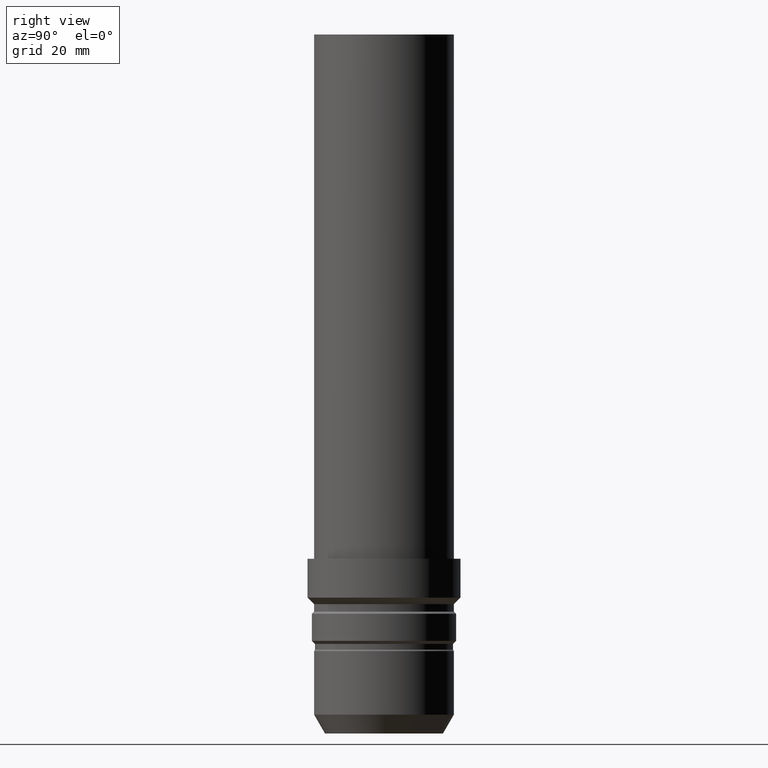
[diagram: clean part render]
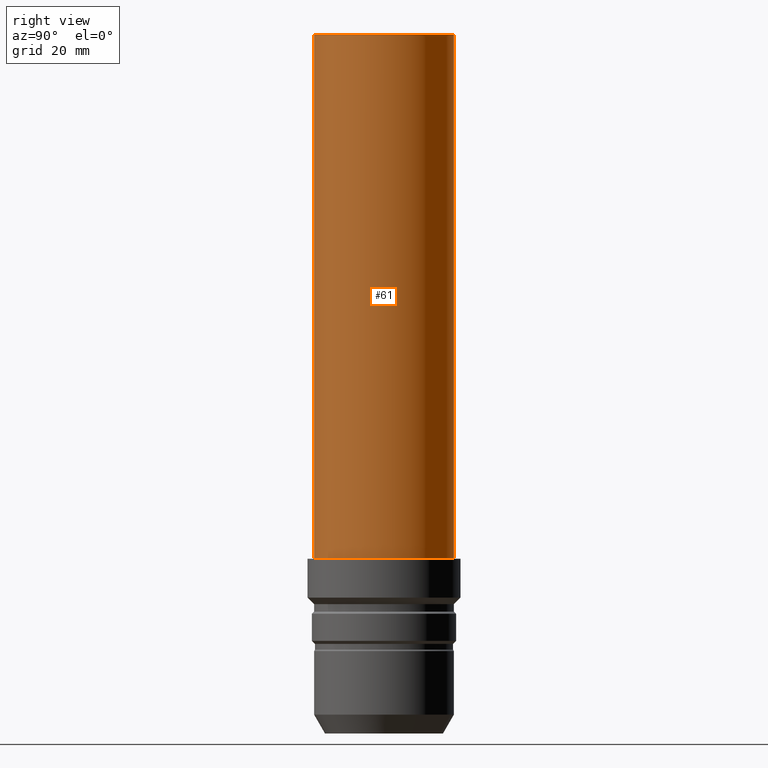
[diagram: same view with one face highlighted and labeled with its STEP entity id]
A machine part, right view. The second image highlights one B-rep face of the part: STEP entity #61.
In plain terms, the highlighted cylindrical surface (bore or boss wall) has radius 16 mm, axis along (0, -0, -1).
Its self-contained STEP definition (entity closure, byte-faithful):
#61=ADVANCED_FACE('Unnamed[1]',(#153,#154),#155,.T.);
#66=EDGE_CURVE('Unnamed[1]',#162,#162,#163,.T.);
#109=EDGE_CURVE('Unnamed[1]',#228,#228,#229,.T.);
#153=FACE_BOUND('',#273,.T.);
#154=FACE_BOUND('',#274,.T.);
#155=CYLINDRICAL_SURFACE('',#275,16.0000000000001);
#162=VERTEX_POINT('',#284);
#163=CIRCLE('',#285,16.0);
#228=VERTEX_POINT('',#366);
#229=CIRCLE('',#367,16.0000000000002);
#273=EDGE_LOOP('',(#408));
#274=EDGE_LOOP('',(#409));
#275=AXIS2_PLACEMENT_3D('',#410,#411,#412);
#284=CARTESIAN_POINT('',(-9.7971743931788E-015,16.0000000000002,160.0));
#285=AXIS2_PLACEMENT_3D('',#419,#420,#421);
#366=CARTESIAN_POINT('',(-2.4492935982947E-015,16.0000000000002,39.9999999999998));
#367=AXIS2_PLACEMENT_3D('',#491,#492,#493);
#408=ORIENTED_EDGE('',*,*,#109,.F.);
#409=ORIENTED_EDGE('',*,*,#66,.T.);
#410=CARTESIAN_POINT('',(-6.12323399573675E-015,1.36889334477662E-013,99.9999999999997));
#411=DIRECTION('',(6.12323399573676E-017,-1.3688933447766E-015,-1.0));
#412=DIRECTION('',(7.89933899219683E-032,1.0,-1.3688933447766E-015));
#419=CARTESIAN_POINT('',(-9.7971743931788E-015,2.1902293516426E-013,160.0));
#420=DIRECTION('',(6.12323399573677E-017,-1.36889334477661E-015,-1.0));
#421=DIRECTION('',(7.89933899219688E-032,1.0,-1.36889334477661E-015));
#491=CARTESIAN_POINT('',(-2.4492935982947E-015,5.47557337910649E-014,39.9999999999999));
#492=DIRECTION('',(6.12323399573676E-017,-1.36889334477659E-015,-1.0));
#493=DIRECTION('',(7.89933899219678E-032,1.0,-1.36889334477659E-015));